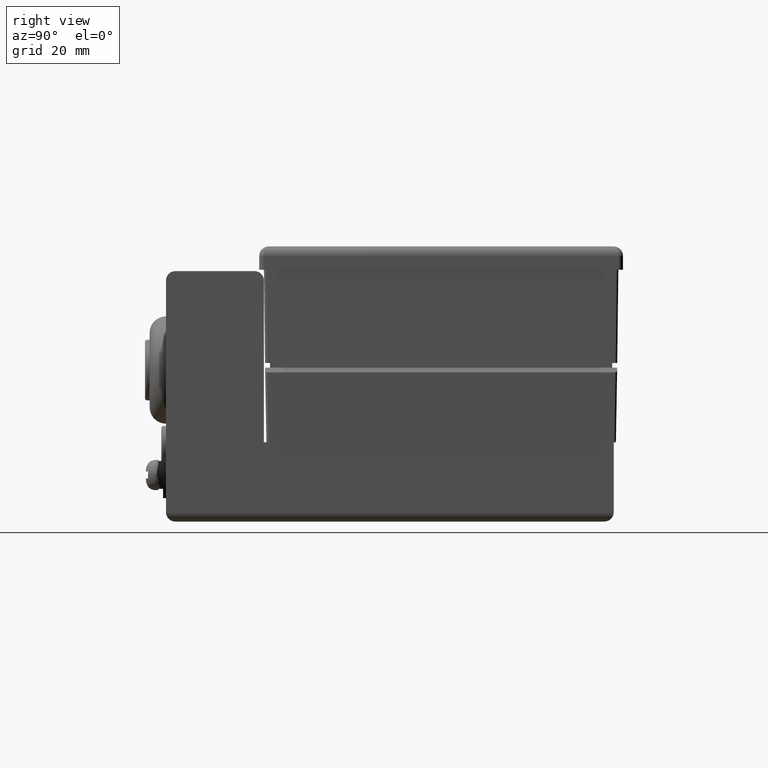
[diagram: clean part render]
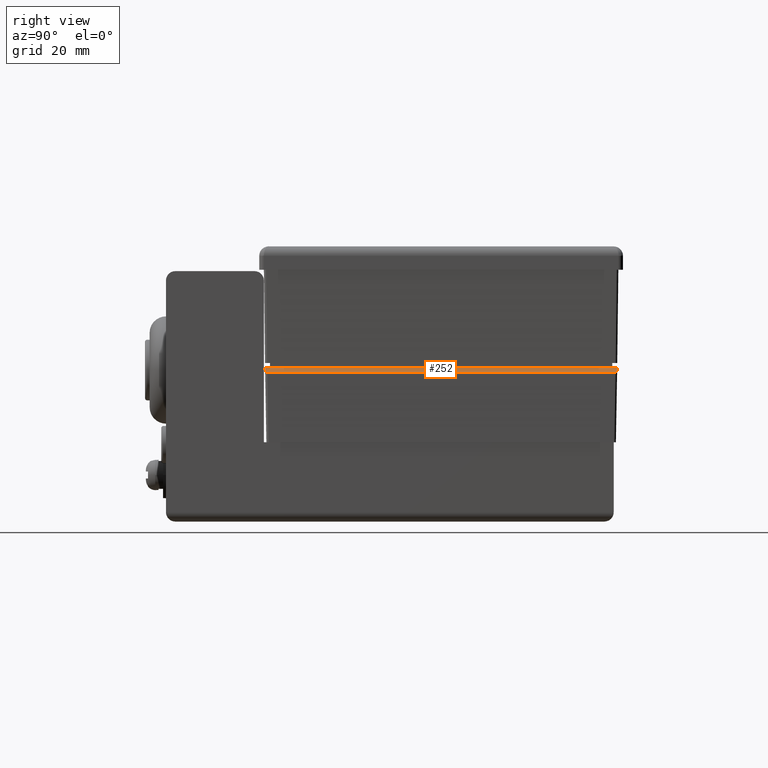
[diagram: same view with one face highlighted and labeled with its STEP entity id]
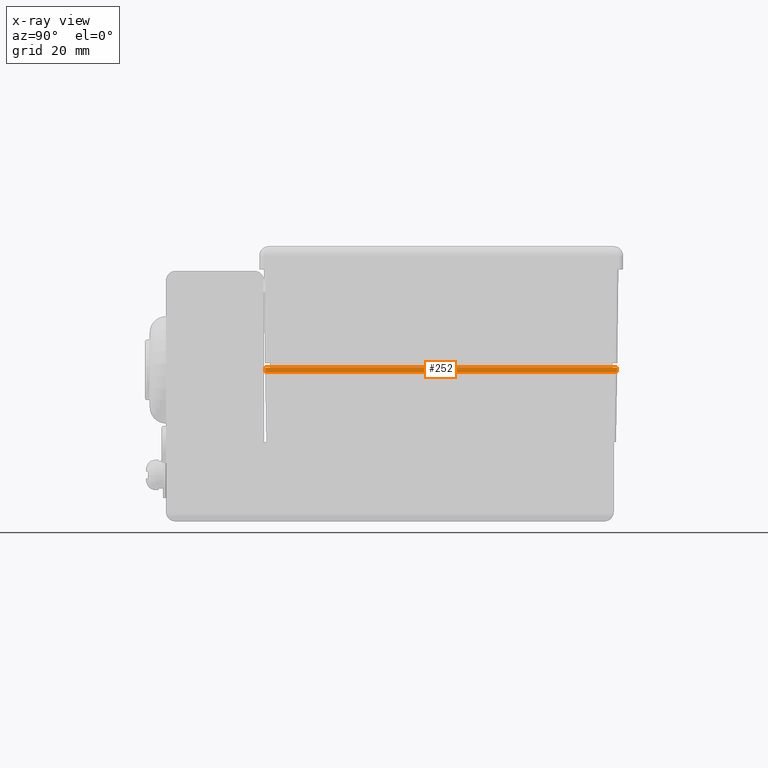
[diagram: x-ray of the same camera — body ghosted, the highlighted face saturated]
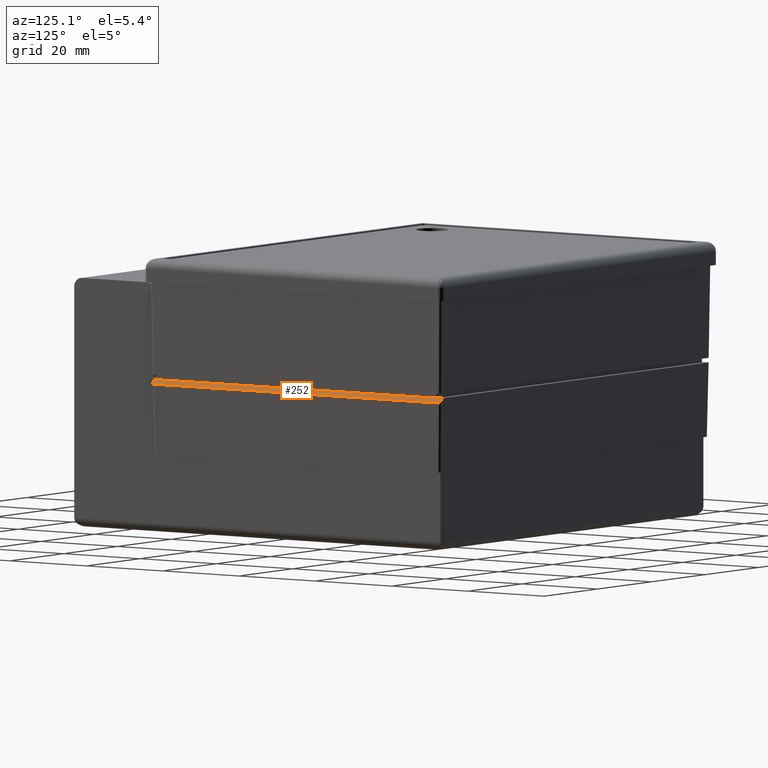
[diagram: same view with one face highlighted and labeled with its STEP entity id]
A machine part, right view. The second image highlights one B-rep face of the part: STEP entity #252.
The next image is the same camera in x-ray: the body ghosted, the highlighted face saturated — about 0% of this face is hidden behind the body in this view.
A second angle (auxiliary view) of the same face is appended — the face is thin or edge-on in the first view.
In plain terms, the highlighted planar face has unit normal (0.7133, -0, 0.7009).
Its self-contained STEP definition (entity closure, byte-faithful):
#252 = ADVANCED_FACE( '', ( #624 ), #625, .T. );
#624 = FACE_OUTER_BOUND( '', #1286, .T. );
#625 = PLANE( '', #1287 );
#1286 = EDGE_LOOP( '', ( #2393, #2394, #2395, #2396, #2397, #2398, #2399, #2400 ) );
#1287 = AXIS2_PLACEMENT_3D( '', #2401, #2402, #2403 );
#2393 = ORIENTED_EDGE( '', *, *, #3388, .F. );
#2394 = ORIENTED_EDGE( '', *, *, #3441, .T. );
#2395 = ORIENTED_EDGE( '', *, *, #3442, .F. );
#2396 = ORIENTED_EDGE( '', *, *, #3443, .F. );
#2397 = ORIENTED_EDGE( '', *, *, #3444, .F. );
#2398 = ORIENTED_EDGE( '', *, *, #3445, .F. );
#2399 = ORIENTED_EDGE( '', *, *, #3446, .F. );
#2400 = ORIENTED_EDGE( '', *, *, #3447, .T. );
#2401 = CARTESIAN_POINT( '', ( 49.2500000000000, 37.7500000000000, -26.0000000000000 ) );
#2402 = DIRECTION( '', ( 0.713250449154178, -5.98159196711992E-017, 0.700909264299854 ) );
#2403 = DIRECTION( '', ( 0.700909264299854, 0.000000000000000, -0.713250449154178 ) );
#3388 = EDGE_CURVE( '', #3906, #3908, #3909, .F. );
#3441 = EDGE_CURVE( '', #3906, #3990, #3991, .T. );
#3442 = EDGE_CURVE( '', #3992, #3990, #3993, .F. );
#3443 = EDGE_CURVE( '', #3994, #3992, #3995, .T. );
#3444 = EDGE_CURVE( '', #3863, #3994, #3996, .T. );
#3445 = EDGE_CURVE( '', #3997, #3863, #3998, .T. );
#3446 = EDGE_CURVE( '', #3999, #3997, #4000, .F. );
#3447 = EDGE_CURVE( '', #3999, #3908, #4001, .T. );
#3863 = VERTEX_POINT( '', #4553 );
#3906 = VERTEX_POINT( '', #4608 );
#3908 = VERTEX_POINT( '', #4611 );
#3909 = LINE( '', #4612, #4613 );
#3990 = VERTEX_POINT( '', #4712 );
#3991 = ELLIPSE( '', #4713, 0.701122784315394, 0.500000000000000 );
#3992 = VERTEX_POINT( '', #4714 );
#3993 = LINE( '', #4715, #4716 );
#3994 = VERTEX_POINT( '', #4717 );
#3995 = LINE( '', #4718, #4719 );
#3996 = LINE( '', #4720, #4721 );
#3997 = VERTEX_POINT( '', #4722 );
#3998 = LINE( '', #4723, #4724 );
#3999 = VERTEX_POINT( '', #4725 );
#4000 = LINE( '', #4726, #4727 );
#4001 = ELLIPSE( '', #4728, 0.701122784315394, 0.500000000000000 );
#4553 = CARTESIAN_POINT( '', ( 49.2500000000000, -36.7000000000000, -26.0000000000000 ) );
#4608 = CARTESIAN_POINT( '', ( 50.2325475935627, 37.2326237459845, -26.9998476951564 ) );
#4611 = CARTESIAN_POINT( '', ( 50.2325475935627, -37.2326237459845, -26.9998476951564 ) );
#4612 = CARTESIAN_POINT( '', ( 50.2325475935627, 37.7500000000000, -26.9998476951564 ) );
#4613 = VECTOR( '', #5397, 1000.00000000000 );
#4712 = CARTESIAN_POINT( '', ( 49.7413486201602, 37.7412724677383, -26.4999999884016 ) );
#4713 = AXIS2_PLACEMENT_3D( '', #5470, #5471, #5472 );
#4714 = CARTESIAN_POINT( '', ( 49.2500000000000, 37.7500000000000, -26.0000000000000 ) );
#4715 = CARTESIAN_POINT( '', ( 49.7411976619595, 37.7412751491187, -26.4998463722206 ) );
#4716 = VECTOR( '', #5473, 1000.00000000000 );
#4717 = CARTESIAN_POINT( '', ( 49.2500000000000, 36.7000000000000, -26.0000000000000 ) );
#4718 = CARTESIAN_POINT( '', ( 49.2500000000000, 37.7500000000000, -26.0000000000000 ) );
#4719 = VECTOR( '', #5474, 1000.00000000000 );
#4720 = CARTESIAN_POINT( '', ( 49.2500000000000, 37.7500000000000, -26.0000000000000 ) );
#4721 = VECTOR( '', #5475, 1000.00000000000 );
#4722 = CARTESIAN_POINT( '', ( 49.2500000000000, -37.7500000000000, -26.0000000000000 ) );
#4723 = CARTESIAN_POINT( '', ( 49.2500000000000, 37.7500000000000, -26.0000000000000 ) );
#4724 = VECTOR( '', #5476, 1000.00000000000 );
#4725 = CARTESIAN_POINT( '', ( 49.7413486201602, -37.7412724677383, -26.4999999884016 ) );
#4726 = CARTESIAN_POINT( '', ( 49.7411976619595, -37.7412751491187, -26.4998463722206 ) );
#4727 = VECTOR( '', #5477, 1000.00000000000 );
#4728 = AXIS2_PLACEMENT_3D( '', #5478, #5479, #5480 );
#5397 = DIRECTION( '', ( 8.38638373689537E-017, 1.00000000000000, 2.25538562259321E-035 ) );
#5470 = CARTESIAN_POINT( '', ( 49.7411989620049, 37.2411989620049, -26.4998476951564 ) );
#5471 = DIRECTION( '', ( 0.713250449154178, -5.69067798679874E-017, 0.700909264299854 ) );
#5472 = DIRECTION( '', ( -0.700692085737740, 0.0248919505737966, 0.713029446643775 ) );
#5473 = DIRECTION( '', ( -0.700854950727696, 0.0124488681605032, 0.713195179261611 ) );
#5474 = DIRECTION( '', ( 8.38638373689537E-017, 1.00000000000000, 0.000000000000000 ) );
#5475 = DIRECTION( '', ( 8.38638373689537E-017, 1.00000000000000, 0.000000000000000 ) );
#5476 = DIRECTION( '', ( 8.38638373689537E-017, 1.00000000000000, 0.000000000000000 ) );
#5477 = DIRECTION( '', ( 0.700854950727696, 0.0124488681605032, -0.713195179261611 ) );
#5478 = CARTESIAN_POINT( '', ( 49.7411989620049, -37.2411989620049, -26.4998476951564 ) );
#5479 = DIRECTION( '', ( 0.713250449154178, -5.93809876883347E-017, 0.700909264299854 ) );
#5480 = DIRECTION( '', ( -0.700692085737740, -0.0248919505737965, 0.713029446643775 ) );